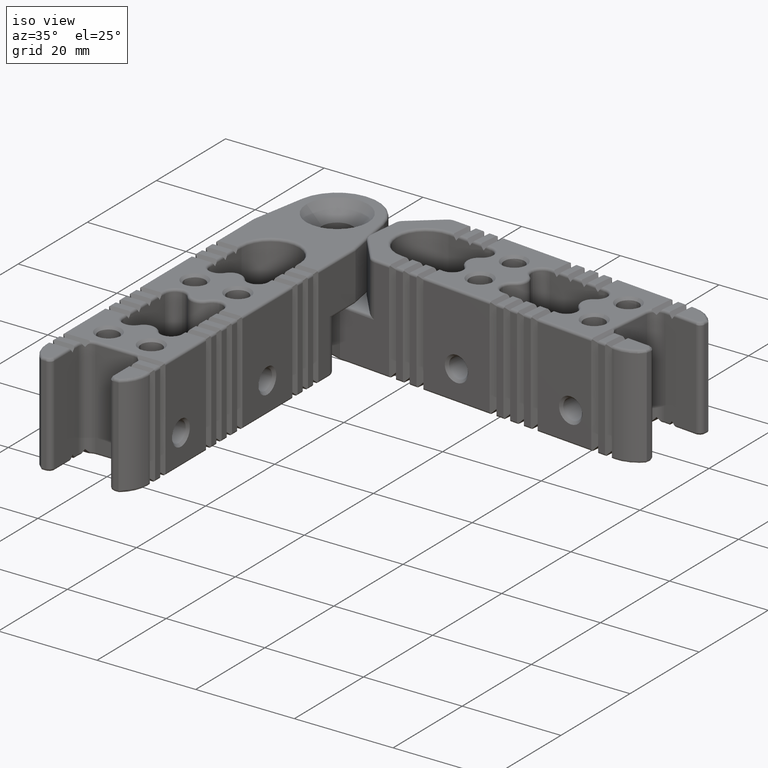
[diagram: clean part render]
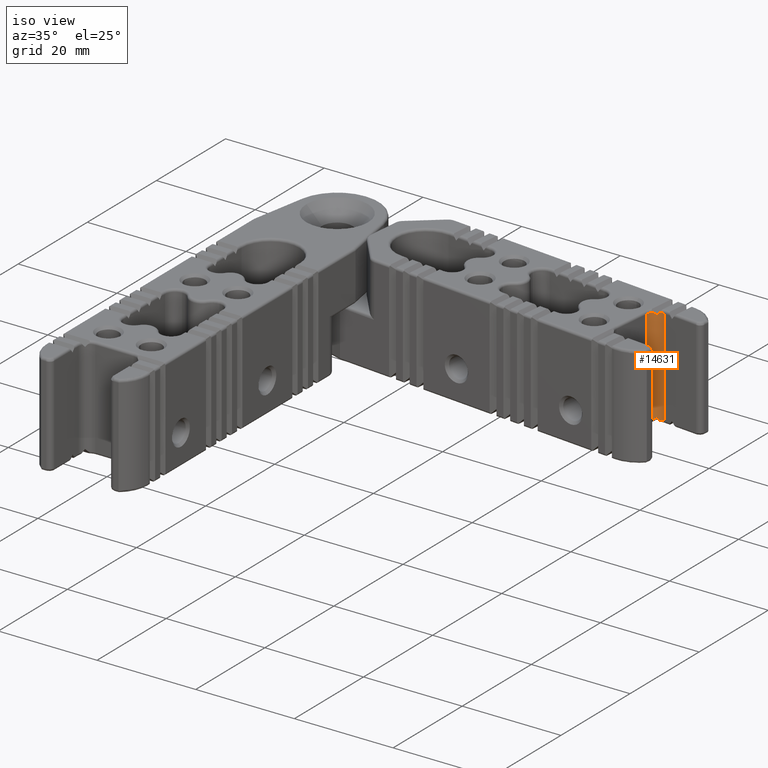
[diagram: same view with one face highlighted and labeled with its STEP entity id]
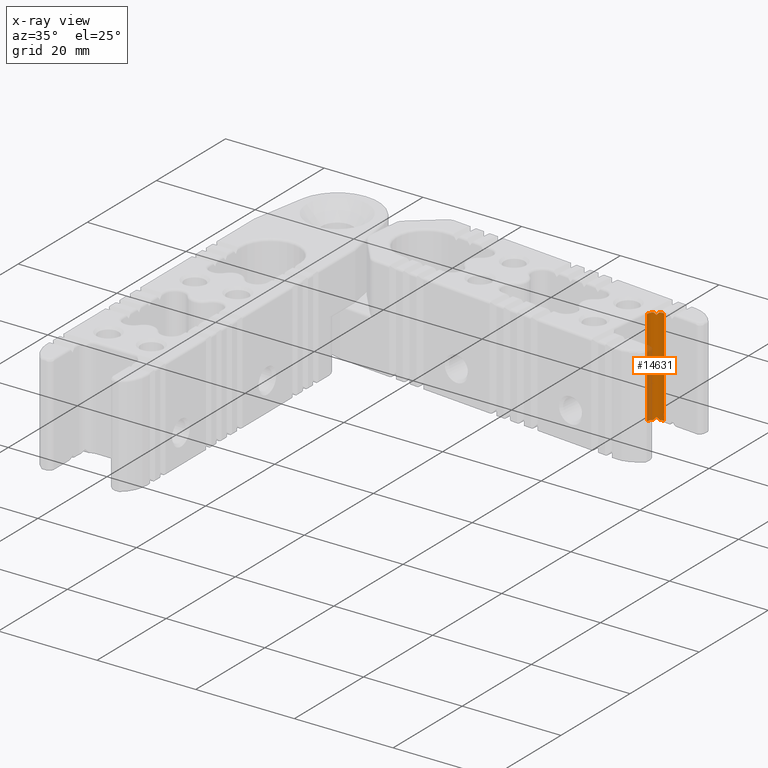
[diagram: x-ray of the same camera — body ghosted, the highlighted face saturated]
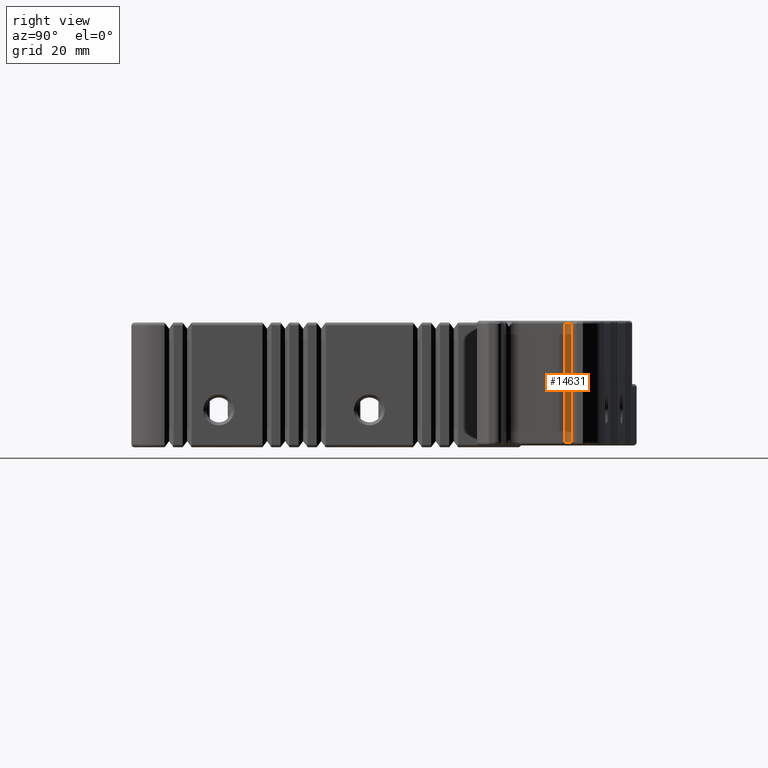
[diagram: same view with one face highlighted and labeled with its STEP entity id]
A machine part, iso view. The second image highlights one B-rep face of the part: STEP entity #14631.
The next image is the same camera in x-ray: the body ghosted, the highlighted face saturated — about 21% of this face is hidden behind the body in this view.
A second angle (right view) of the same face is appended — the face is thin or edge-on in the first view.
In plain terms, the highlighted cylindrical surface (edge-blend (fillet) strip) has radius 2 mm, axis along (0, 0, 1).
Its self-contained STEP definition (entity closure, byte-faithful):
#495=CIRCLE('',#15954,2.);
#646=CIRCLE('',#16283,2.);
#647=CIRCLE('',#16284,2.);
#648=CIRCLE('',#16287,2.);
#929=CYLINDRICAL_SURFACE('',#16282,2.);
#1576=FACE_OUTER_BOUND('',#2423,.T.);
#2423=EDGE_LOOP('',(#12335,#12336,#12337,#12338,#12339,#12340,#12341,#12342,
#12343,#12344));
#3593=LINE('',#26069,#4797);
#3594=LINE('',#26075,#4798);
#4797=VECTOR('',#20307,1000.);
#4798=VECTOR('',#20314,1000.);
#5418=ELLIPSE('',#16285,3.33333333333333,2.);
#5419=ELLIPSE('',#16286,3.33333333333333,2.);
#5420=ELLIPSE('',#16288,3.33333333333333,2.);
#5421=ELLIPSE('',#16289,3.33333333333333,2.);
#6375=VERTEX_POINT('',#24784);
#6458=VERTEX_POINT('',#25136);
#6460=VERTEX_POINT('',#25139);
#6786=VERTEX_POINT('',#26065);
#6787=VERTEX_POINT('',#26066);
#6788=VERTEX_POINT('',#26068);
#6789=VERTEX_POINT('',#26070);
#6790=VERTEX_POINT('',#26072);
#6791=VERTEX_POINT('',#26076);
#6792=VERTEX_POINT('',#26078);
#8293=EDGE_CURVE('',#6458,#6460,#495,.T.);
#8748=EDGE_CURVE('',#6786,#6787,#646,.T.);
#8749=EDGE_CURVE('',#6786,#6788,#3593,.T.);
#8750=EDGE_CURVE('',#6789,#6788,#647,.T.);
#8751=EDGE_CURVE('',#6789,#6790,#5418,.T.);
#8752=EDGE_CURVE('',#6790,#6460,#5419,.T.);
#8753=EDGE_CURVE('',#6458,#6375,#3594,.T.);
#8754=EDGE_CURVE('',#6791,#6375,#648,.T.);
#8755=EDGE_CURVE('',#6791,#6792,#5420,.T.);
#8756=EDGE_CURVE('',#6792,#6787,#5421,.T.);
#12335=ORIENTED_EDGE('',*,*,#8748,.F.);
#12336=ORIENTED_EDGE('',*,*,#8749,.T.);
#12337=ORIENTED_EDGE('',*,*,#8750,.F.);
#12338=ORIENTED_EDGE('',*,*,#8751,.T.);
#12339=ORIENTED_EDGE('',*,*,#8752,.T.);
#12340=ORIENTED_EDGE('',*,*,#8293,.F.);
#12341=ORIENTED_EDGE('',*,*,#8753,.T.);
#12342=ORIENTED_EDGE('',*,*,#8754,.F.);
#12343=ORIENTED_EDGE('',*,*,#8755,.T.);
#12344=ORIENTED_EDGE('',*,*,#8756,.T.);
#14631=ADVANCED_FACE('',(#1576),#929,.F.);
#15954=AXIS2_PLACEMENT_3D('',#25140,#19402,#19403);
#16282=AXIS2_PLACEMENT_3D('',#26064,#20303,#20304);
#16283=AXIS2_PLACEMENT_3D('',#26067,#20305,#20306);
#16284=AXIS2_PLACEMENT_3D('',#26071,#20308,#20309);
#16285=AXIS2_PLACEMENT_3D('',#26073,#20310,#20311);
#16286=AXIS2_PLACEMENT_3D('',#26074,#20312,#20313);
#16287=AXIS2_PLACEMENT_3D('',#26077,#20315,#20316);
#16288=AXIS2_PLACEMENT_3D('',#26079,#20317,#20318);
#16289=AXIS2_PLACEMENT_3D('',#26080,#20319,#20320);
#19402=DIRECTION('center_axis',(0.,0.,-1.));
#19403=DIRECTION('ref_axis',(-1.,8.95886477279356E-17,0.));
#20303=DIRECTION('center_axis',(0.,0.,1.));
#20304=DIRECTION('ref_axis',(0.707106781186546,-0.707106781186549,0.));
#20305=DIRECTION('center_axis',(0.,0.,1.));
#20306=DIRECTION('ref_axis',(0.126004292482724,-0.992029696267167,0.));
#20307=DIRECTION('',(0.,0.,1.));
#20308=DIRECTION('center_axis',(0.,0.,-1.));
#20309=DIRECTION('ref_axis',(0.126004292482724,-0.992029696267167,0.));
#20310=DIRECTION('center_axis',(0.799999999999999,-7.16709181823484E-17,
0.600000000000001));
#20311=DIRECTION('ref_axis',(0.600000000000001,-1.21198252133181E-17,-0.799999999999999));
#20312=DIRECTION('center_axis',(-0.799999999999999,7.16709181823483E-17,
0.600000000000001));
#20313=DIRECTION('ref_axis',(0.600000000000001,-1.78653278907091E-16,0.799999999999999));
#20314=DIRECTION('',(0.,0.,-1.));
#20315=DIRECTION('center_axis',(0.,0.,1.));
#20316=DIRECTION('ref_axis',(-1.,8.95886477279356E-17,0.));
#20317=DIRECTION('center_axis',(-0.8,7.16709181823485E-17,-0.6));
#20318=DIRECTION('ref_axis',(0.6,-1.2119825213318E-17,-0.8));
#20319=DIRECTION('center_axis',(0.8,-7.16709181823485E-17,-0.6));
#20320=DIRECTION('ref_axis',(0.6,-5.37531886367614E-17,0.8));
#24784=CARTESIAN_POINT('',(-84.8300087747087,-16.7225456785213,-2.39253690381256));
#25136=CARTESIAN_POINT('',(-84.8300087747087,-16.7225456785213,17.3074630961874));
#25139=CARTESIAN_POINT('',(-85.2050087747087,-17.8884680601574,17.3074630961874));
#25140=CARTESIAN_POINT('Origin',(-86.8300087747087,-16.7225456785213,17.3074630961874));
#26064=CARTESIAN_POINT('Origin',(-86.8300087747087,-16.7225456785213,-2.89253690381256));
#26065=CARTESIAN_POINT('',(-86.8300087747087,-18.7225456785213,-2.39253690381256));
#26066=CARTESIAN_POINT('',(-85.9550087747087,-18.5209824997636,-2.39253690381256));
#26067=CARTESIAN_POINT('Origin',(-86.8300087747087,-16.7225456785213,-2.39253690381256));
#26068=CARTESIAN_POINT('',(-86.8300087747087,-18.7225456785213,17.3074630961874));
#26069=CARTESIAN_POINT('',(-86.8300087747087,-18.7225456785213,-2.89253690381256));
#26070=CARTESIAN_POINT('',(-85.9550087747087,-18.5209824997636,17.3074630961874));
#26071=CARTESIAN_POINT('Origin',(-86.8300087747087,-16.7225456785213,17.3074630961874));
#26072=CARTESIAN_POINT('',(-85.5800087747087,-18.2837951781209,16.8074630961874));
#26073=CARTESIAN_POINT('Origin',(-86.8300087747087,-16.7225456785213,18.4741297628541));
#26074=CARTESIAN_POINT('Origin',(-86.8300087747087,-16.7225456785213,15.1407964295208));
#26075=CARTESIAN_POINT('',(-84.8300087747087,-16.7225456785213,-2.89253690381256));
#26076=CARTESIAN_POINT('',(-85.2050087747087,-17.8884680601574,-2.39253690381256));
#26077=CARTESIAN_POINT('Origin',(-86.8300087747087,-16.7225456785213,-2.39253690381256));
#26078=CARTESIAN_POINT('',(-85.5800087747087,-18.2837951781209,-1.89253690381256));
#26079=CARTESIAN_POINT('Origin',(-86.8300087747087,-16.7225456785213,-0.2258702371459));
#26080=CARTESIAN_POINT('Origin',(-86.8300087747087,-16.7225456785213,-3.55920357047926));